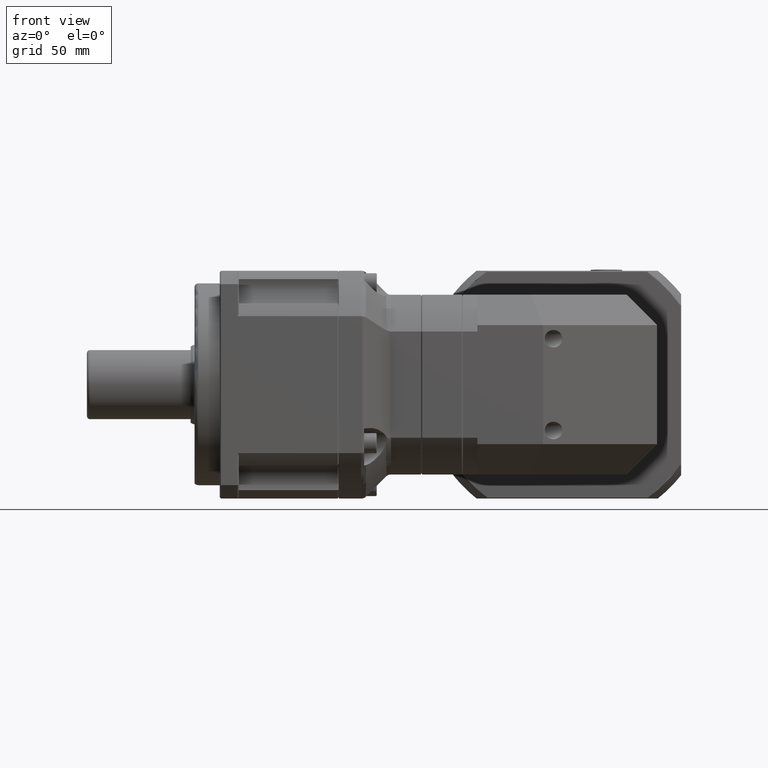
[diagram: clean part render]
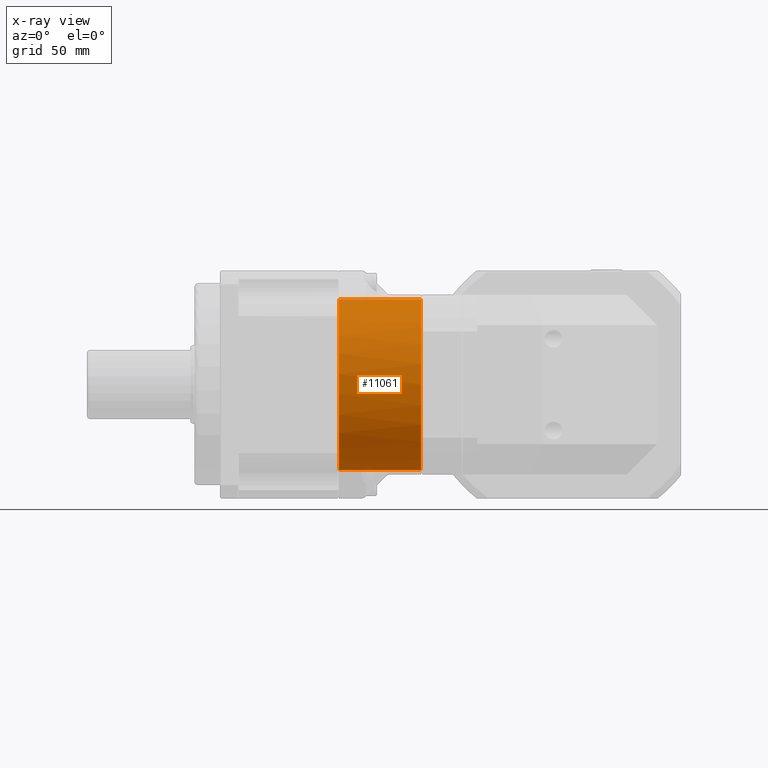
[diagram: x-ray — body ghosted, one internal face saturated and labeled with its STEP entity id]
A machine part, front view, then the same camera in x-ray: the body is ghosted and one INTERNAL B-rep face — a face not visible from any outside direction — is saturated and labeled: STEP entity #11061.
In plain terms, the highlighted cylindrical surface (bore or boss wall) has radius 67.5 mm, axis along (-1, 0, -0).
Its self-contained STEP definition (entity closure, byte-faithful):
#2092=FACE_BOUND('',#3289,.T.);
#2478=FACE_OUTER_BOUND('',#3288,.T.);
#3288=EDGE_LOOP('',(#7718));
#3289=EDGE_LOOP('',(#7719,#7720,#7721,#7722,#7723,#7724,#7725,#7726));
#4340=CIRCLE('',#11914,67.5);
#4342=CIRCLE('',#11916,67.5);
#4344=CIRCLE('',#11918,67.5);
#4346=CIRCLE('',#11920,67.5);
#4366=CIRCLE('',#11954,67.5);
#4367=CIRCLE('',#11956,67.5);
#4368=CIRCLE('',#11958,67.5);
#4370=CIRCLE('',#11961,67.5);
#4371=CIRCLE('',#11963,67.5);
#4955=VERTEX_POINT('',#16819);
#4956=VERTEX_POINT('',#16820);
#4957=VERTEX_POINT('',#16822);
#4958=VERTEX_POINT('',#16824);
#4959=VERTEX_POINT('',#16826);
#4960=VERTEX_POINT('',#16828);
#4961=VERTEX_POINT('',#16830);
#4962=VERTEX_POINT('',#16832);
#4978=VERTEX_POINT('',#16889);
#6050=EDGE_CURVE('',#4955,#4956,#4340,.T.);
#6052=EDGE_CURVE('',#4957,#4958,#4342,.T.);
#6054=EDGE_CURVE('',#4959,#4960,#4344,.T.);
#6056=EDGE_CURVE('',#4961,#4962,#4346,.T.);
#6076=EDGE_CURVE('',#4958,#4959,#4366,.T.);
#6077=EDGE_CURVE('',#4960,#4961,#4367,.T.);
#6078=EDGE_CURVE('',#4962,#4955,#4368,.T.);
#6080=EDGE_CURVE('',#4978,#4978,#4370,.T.);
#6081=EDGE_CURVE('',#4956,#4957,#4371,.T.);
#7718=ORIENTED_EDGE('',*,*,#6080,.F.);
#7719=ORIENTED_EDGE('',*,*,#6052,.F.);
#7720=ORIENTED_EDGE('',*,*,#6081,.F.);
#7721=ORIENTED_EDGE('',*,*,#6050,.F.);
#7722=ORIENTED_EDGE('',*,*,#6078,.F.);
#7723=ORIENTED_EDGE('',*,*,#6056,.F.);
#7724=ORIENTED_EDGE('',*,*,#6077,.F.);
#7725=ORIENTED_EDGE('',*,*,#6054,.F.);
#7726=ORIENTED_EDGE('',*,*,#6076,.F.);
#10285=CYLINDRICAL_SURFACE('',#11964,67.5);
#11061=ADVANCED_FACE('',(#2478,#2092),#10285,.F.);
#11914=AXIS2_PLACEMENT_3D('',#16821,#13461,#13462);
#11916=AXIS2_PLACEMENT_3D('',#16825,#13465,#13466);
#11918=AXIS2_PLACEMENT_3D('',#16829,#13469,#13470);
#11920=AXIS2_PLACEMENT_3D('',#16833,#13473,#13474);
#11954=AXIS2_PLACEMENT_3D('',#16881,#13541,#13542);
#11956=AXIS2_PLACEMENT_3D('',#16883,#13545,#13546);
#11958=AXIS2_PLACEMENT_3D('',#16885,#13549,#13550);
#11961=AXIS2_PLACEMENT_3D('',#16890,#13555,#13556);
#11963=AXIS2_PLACEMENT_3D('',#16892,#13559,#13560);
#11964=AXIS2_PLACEMENT_3D('',#16893,#13561,#13562);
#13461=DIRECTION('center_axis',(-1.,2.1188263829396E-19,-3.47830788615078E-16));
#13462=DIRECTION('ref_axis',(-3.47830788615078E-16,1.66533453693773E-16,
1.));
#13465=DIRECTION('center_axis',(-1.,2.1188263829396E-19,-3.47830788615078E-16));
#13466=DIRECTION('ref_axis',(-3.47830788615078E-16,1.66533453693773E-16,
1.));
#13469=DIRECTION('center_axis',(-1.,2.1188263829396E-19,-3.47830788615078E-16));
#13470=DIRECTION('ref_axis',(-3.47830788615078E-16,1.66533453693773E-16,
1.));
#13473=DIRECTION('center_axis',(-1.,2.1188263829396E-19,-3.47830788615078E-16));
#13474=DIRECTION('ref_axis',(-3.47830788615078E-16,1.66533453693773E-16,
1.));
#13541=DIRECTION('center_axis',(-1.,2.1188263829396E-19,-3.47830788615078E-16));
#13542=DIRECTION('ref_axis',(-3.47830788615078E-16,1.66533453693773E-16,
1.));
#13545=DIRECTION('center_axis',(-1.,2.1188263829396E-19,-3.47830788615078E-16));
#13546=DIRECTION('ref_axis',(-3.47830788615078E-16,1.66533453693773E-16,
1.));
#13549=DIRECTION('center_axis',(-1.,2.1188263829396E-19,-3.47830788615078E-16));
#13550=DIRECTION('ref_axis',(-3.47830788615078E-16,1.66533453693773E-16,
1.));
#13555=DIRECTION('center_axis',(1.,-2.1188263829396E-19,3.47830788615078E-16));
#13556=DIRECTION('ref_axis',(-3.47830788615078E-16,1.66533453693773E-16,
1.));
#13559=DIRECTION('center_axis',(-1.,2.1188263829396E-19,-3.47830788615078E-16));
#13560=DIRECTION('ref_axis',(-3.47830788615078E-16,1.66533453693773E-16,
1.));
#13561=DIRECTION('center_axis',(-1.,2.1188263829396E-19,-3.47830788615078E-16));
#13562=DIRECTION('ref_axis',(-3.47830788615078E-16,1.66533453693773E-16,
1.));
#16819=CARTESIAN_POINT('',(108.344650275927,40.5444754125305,59.2249282115943));
#16820=CARTESIAN_POINT('',(108.344650275927,40.5444754125306,-31.2245554031072));
#16821=CARTESIAN_POINT('Origin',(108.344650275927,-9.56513173478666,14.0001864042435));
#16822=CARTESIAN_POINT('',(108.344650275927,35.6596100725641,-36.1094207430737));
#16824=CARTESIAN_POINT('',(108.344650275927,-54.7898735421373,-36.1094207430737));
#16825=CARTESIAN_POINT('Origin',(108.344650275927,-9.56513173478666,14.0001864042435));
#16826=CARTESIAN_POINT('',(108.344650275927,-59.6747388821038,-31.2245554031072));
#16828=CARTESIAN_POINT('',(108.344650275927,-59.6747388821039,59.2249282115942));
#16829=CARTESIAN_POINT('Origin',(108.344650275927,-9.56513173478666,14.0001864042435));
#16830=CARTESIAN_POINT('',(108.344650275927,-54.7898735421374,64.1097935515607));
#16832=CARTESIAN_POINT('',(108.344650275927,35.659610072564,64.1097935515608));
#16833=CARTESIAN_POINT('Origin',(108.344650275927,-9.56513173478666,14.0001864042435));
#16881=CARTESIAN_POINT('Origin',(108.344650275927,-9.56513173478666,14.0001864042435));
#16883=CARTESIAN_POINT('Origin',(108.344650275927,-9.56513173478666,14.0001864042435));
#16885=CARTESIAN_POINT('Origin',(108.344650275927,-9.56513173478666,14.0001864042435));
#16889=CARTESIAN_POINT('',(43.3446502759266,-9.56513173478666,-53.4998135957565));
#16890=CARTESIAN_POINT('Origin',(43.3446502759266,-9.56513173478666,14.0001864042435));
#16892=CARTESIAN_POINT('Origin',(108.344650275927,-9.56513173478666,14.0001864042435));
#16893=CARTESIAN_POINT('Origin',(108.344650275927,-9.56513173478666,14.0001864042435));